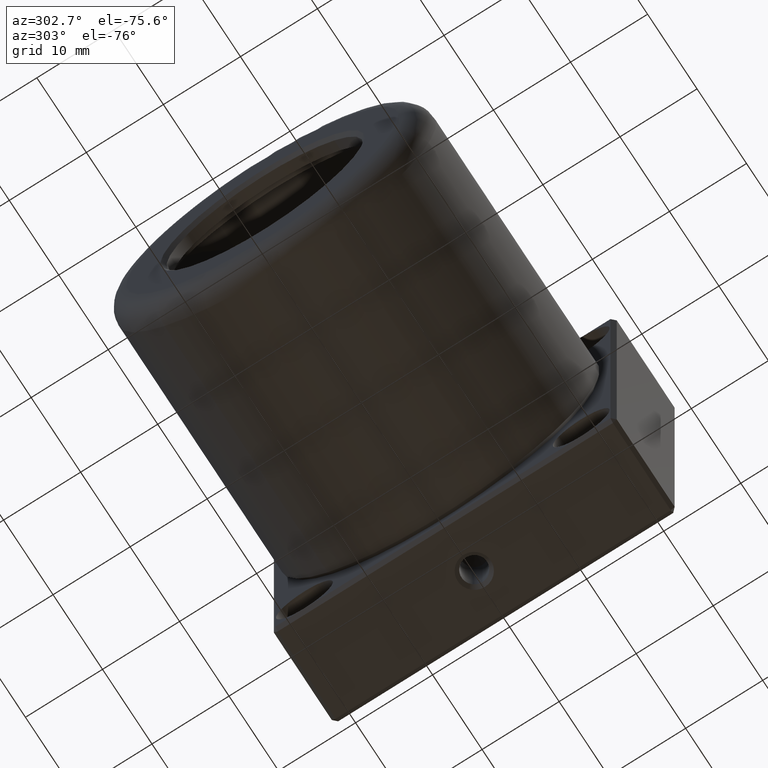
[diagram: clean part render]
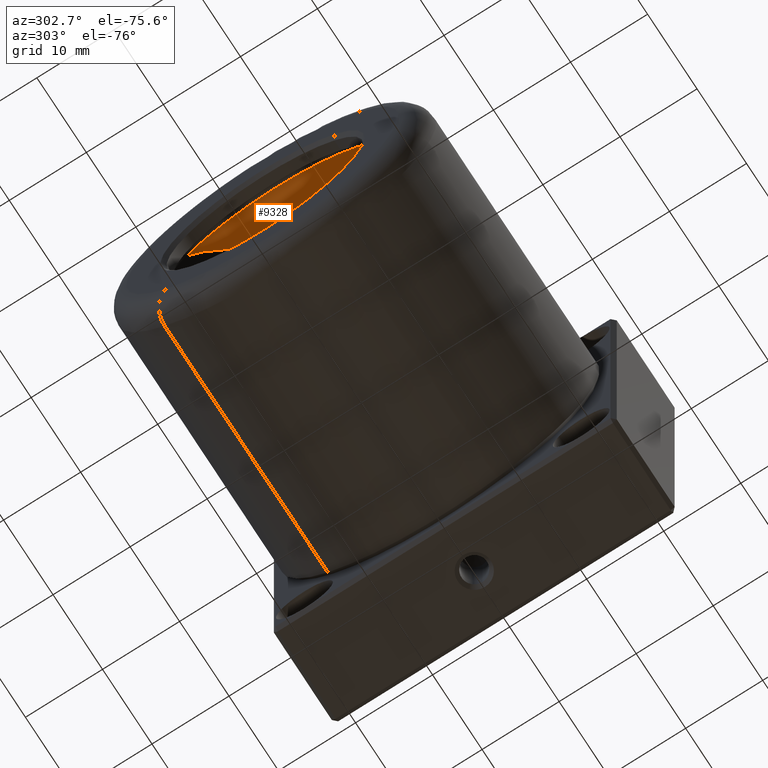
[diagram: same view with one face highlighted and labeled with its STEP entity id]
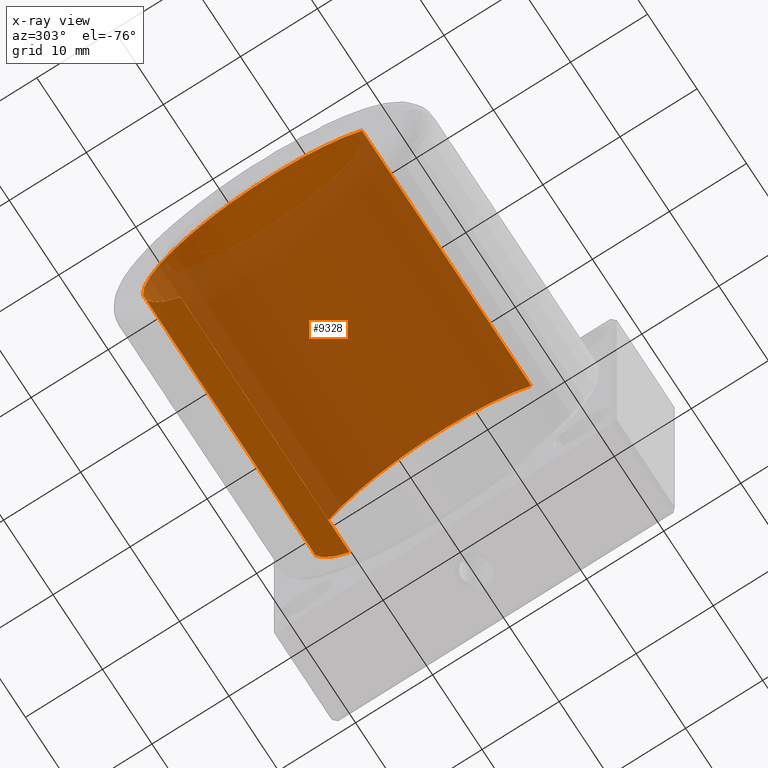
[diagram: x-ray of the same camera — body ghosted, the highlighted face saturated]
A machine part, auxiliary view. The second image highlights one B-rep face of the part: STEP entity #9328.
The next image is the same camera in x-ray: the body ghosted, the highlighted face saturated — about 82% of this face is hidden behind the body in this view.
In plain terms, the highlighted cylindrical surface (partial cylindrical patch) has radius 16.65 mm, axis along (1, -0, 0).
Its self-contained STEP definition (entity closure, byte-faithful):
#4 = AXIS2_PLACEMENT_3D ( 'NONE', #7892, #434, #5142 ) ;
#181 = VERTEX_POINT ( 'NONE', #8380 ) ;
#232 = DIRECTION ( 'NONE',  ( 1.000000000000000000, -6.489919646852779600E-017, 4.417091939023369800E-017 ) ) ;
#295 = VERTEX_POINT ( 'NONE', #9298 ) ;
#316 = EDGE_LOOP ( 'NONE', ( #9264, #2647, #7121, #6032 ) ) ;
#434 = DIRECTION ( 'NONE',  ( 1.000000000000000000, -6.489919646852779600E-017, 4.417091939023369800E-017 ) ) ;
#1204 = LINE ( 'NONE', #2316, #5883 ) ;
#1430 = EDGE_CURVE ( 'NONE', #1928, #181, #10895, .T. ) ;
#1928 = VERTEX_POINT ( 'NONE', #7468 ) ;
#2316 = CARTESIAN_POINT ( 'NONE',  ( 21.07184035476720000, -11.77332790675612500, 11.77332790675591300 ) ) ;
#2647 = ORIENTED_EDGE ( 'NONE', *, *, #5231, .F. ) ;
#3007 = CIRCLE ( 'NONE', #10368, 16.64999999999999900 ) ;
#3106 = DIRECTION ( 'NONE',  ( 1.000000000000000000, -6.489919646852779600E-017, 4.417091939023369800E-017 ) ) ;
#5017 = EDGE_CURVE ( 'NONE', #295, #7431, #1204, .T. ) ;
#5142 = DIRECTION ( 'NONE',  ( 0.0000000000000000000, 0.7071067811865541200, -0.7071067811865410200 ) ) ;
#5231 = EDGE_CURVE ( 'NONE', #1928, #295, #9090, .T. ) ;
#5518 = DIRECTION ( 'NONE',  ( 1.000000000000000000, -6.489919646852779600E-017, 4.417091939023369800E-017 ) ) ;
#5830 = CARTESIAN_POINT ( 'NONE',  ( 36.00000000000000000, -2.336371072867000500E-015, 1.590153098048413000E-015 ) ) ;
#5883 = VECTOR ( 'NONE', #7626, 1000.000000000000000 ) ;
#5920 = VECTOR ( 'NONE', #5518, 1000.000000000000000 ) ;
#6032 = ORIENTED_EDGE ( 'NONE', *, *, #9572, .T. ) ;
#6477 = AXIS2_PLACEMENT_3D ( 'NONE', #8741, #3106, #9652 ) ;
#6798 = DIRECTION ( 'NONE',  ( 0.0000000000000000000, 0.7071067811865541200, -0.7071067811865410200 ) ) ;
#7013 = CARTESIAN_POINT ( 'NONE',  ( 36.00000000000000000, -11.77332790675612500, 11.77332790675591300 ) ) ;
#7121 = ORIENTED_EDGE ( 'NONE', *, *, #1430, .T. ) ;
#7431 = VERTEX_POINT ( 'NONE', #7013 ) ;
#7468 = CARTESIAN_POINT ( 'NONE',  ( 1.800000000000001200, 11.77332790675612500, -11.77332790675590800 ) ) ;
#7598 = FACE_OUTER_BOUND ( 'NONE', #316, .T. ) ;
#7626 = DIRECTION ( 'NONE',  ( 1.000000000000000000, -6.489919646852779600E-017, 4.417091939023369800E-017 ) ) ;
#7892 = CARTESIAN_POINT ( 'NONE',  ( 21.07184035476720000, -1.367545507137489000E-015, 9.307625617142954200E-016 ) ) ;
#8017 = CYLINDRICAL_SURFACE ( 'NONE', #4, 16.64999999999999900 ) ;
#8380 = CARTESIAN_POINT ( 'NONE',  ( 36.00000000000000000, 11.77332790675612300, -11.77332790675590600 ) ) ;
#8741 = CARTESIAN_POINT ( 'NONE',  ( 1.800000000000000000, -1.168185536433500300E-016, 7.950765490242065500E-017 ) ) ;
#9090 = CIRCLE ( 'NONE', #6477, 16.64999999999999900 ) ;
#9264 = ORIENTED_EDGE ( 'NONE', *, *, #5017, .F. ) ;
#9298 = CARTESIAN_POINT ( 'NONE',  ( 1.799999999999998700, -11.77332790675612100, 11.77332790675591000 ) ) ;
#9328 = ADVANCED_FACE ( 'NONE', ( #7598 ), #8017, .F. ) ;
#9572 = EDGE_CURVE ( 'NONE', #181, #7431, #3007, .T. ) ;
#9652 = DIRECTION ( 'NONE',  ( 7.814069711607240100E-017, 0.7071067811865541200, -0.7071067811865410200 ) ) ;
#10219 = CARTESIAN_POINT ( 'NONE',  ( 21.07184035476720000, 11.77332790675612300, -11.77332790675590600 ) ) ;
#10368 = AXIS2_PLACEMENT_3D ( 'NONE', #5830, #232, #6798 ) ;
#10895 = LINE ( 'NONE', #10219, #5920 ) ;